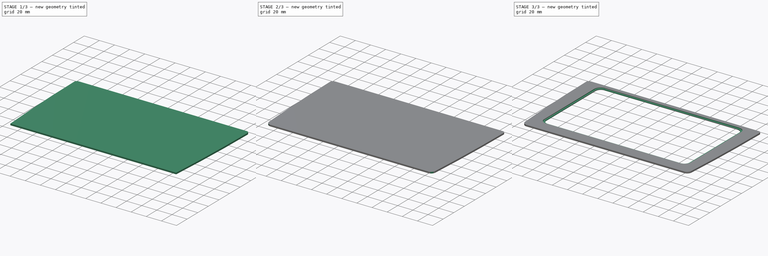
[diagram: build sequence overview — one tinted view per stage of 3, left to right]
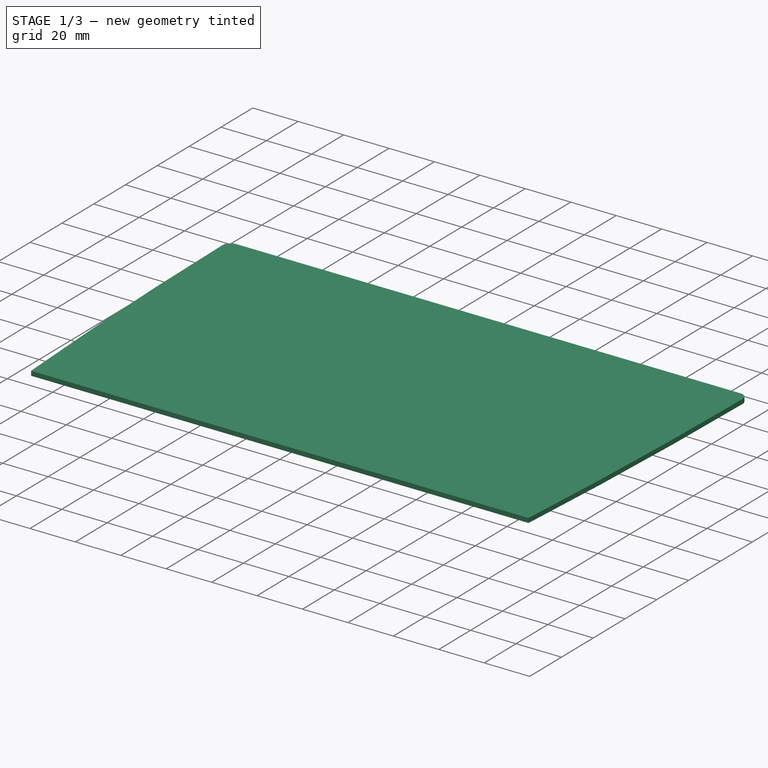
[diagram: stage 1 of 3 — iso view after this stage's code; geometry added in this stage tinted green]
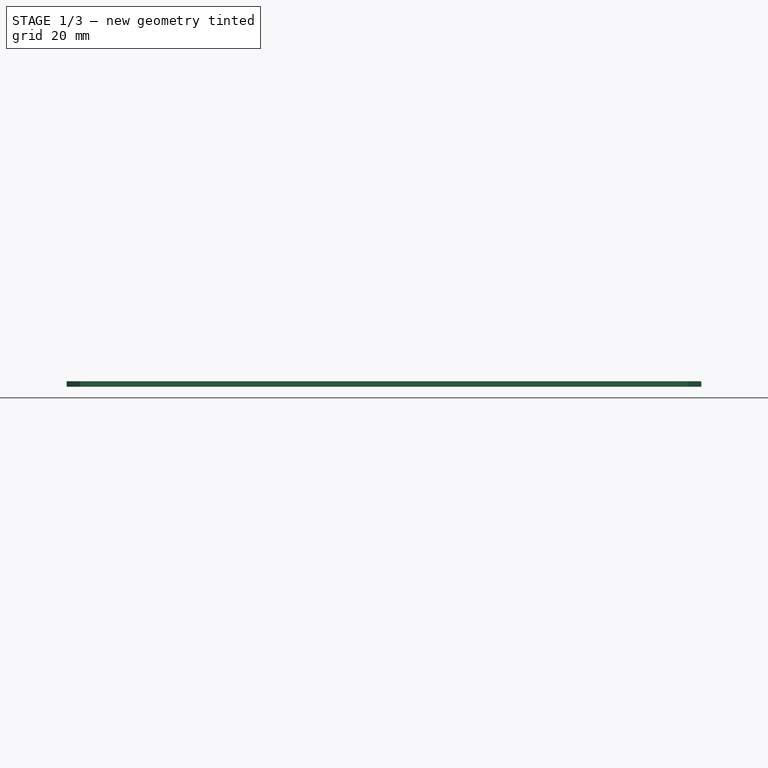
[diagram: stage 1 of 3 — front view after this stage's code; geometry added in this stage tinted green]
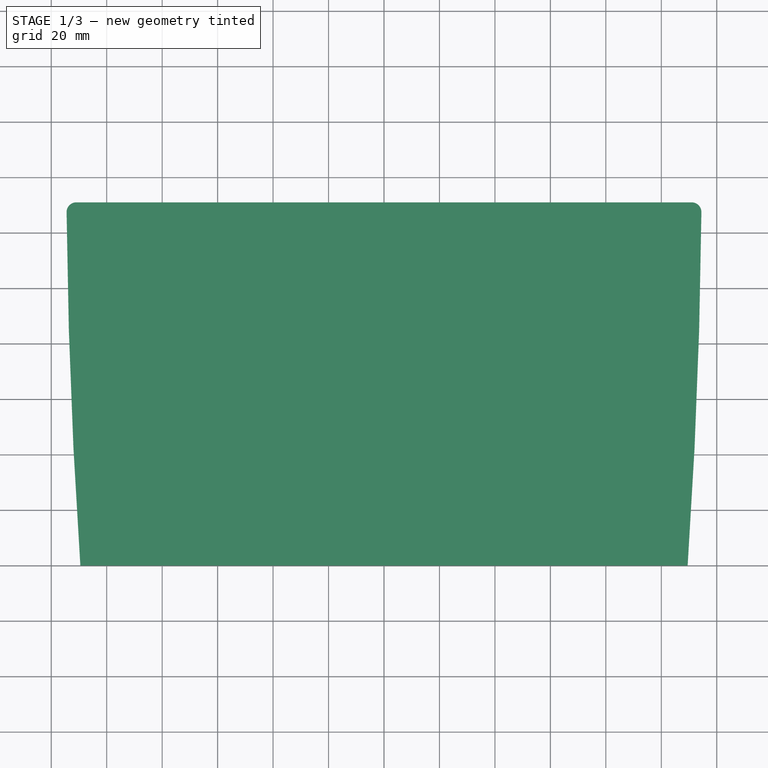
[diagram: stage 1 of 3 — top view after this stage's code; geometry added in this stage tinted green]
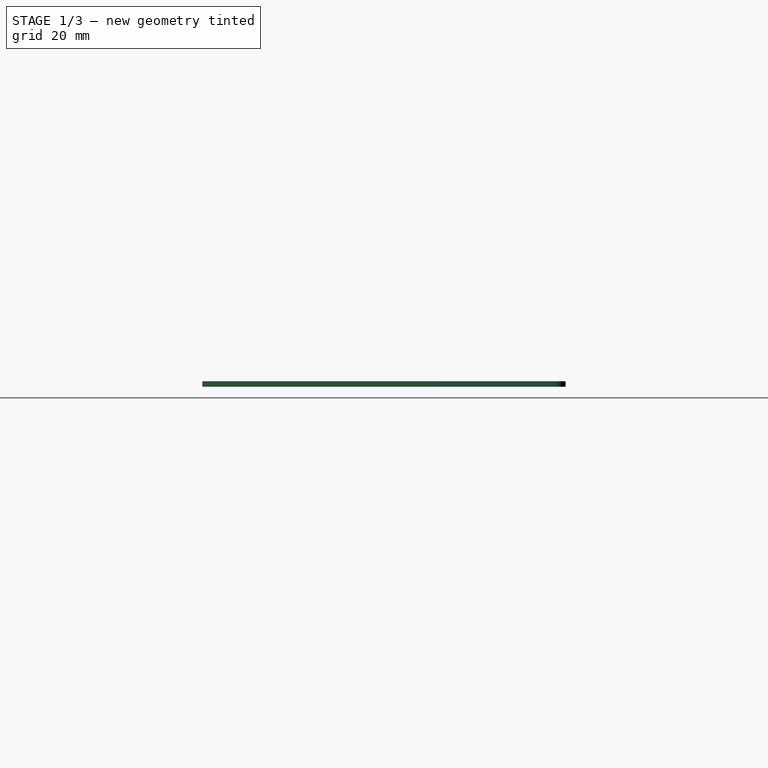
[diagram: stage 1 of 3 — right view after this stage's code; geometry added in this stage tinted green]
FCSTD DOCUMENT  (FreeCAD 0.19R24291 (Git))
Label: test-mount_v2
License: All rights reserved
LicenseURL: http://en.wikipedia.org/wiki/All_rights_reserved
objects: Sketcher::SketchObject×3, PartDesign::Fillet×2, PartDesign::Pocket×2, PartDesign::Pad×1, PartDesign::Body×1
note: 14 computed .brp shape members not serialized (recipe doc carries the construction recipe); baked Part::Feature solids carry a one-line shape summary decoded from their .brp

FEATURE [Sketcher::SketchObject] Sketch
  FullyConstrained = true
  MapMode = 5
  Support = -> [XY_Plane]
  sketch-geometry (9):
    g0: LineSegment StartX=-114.5 StartY=111 StartZ=0 EndX=114.5 EndY=111 EndZ=0
    g1: LineSegment StartX=109.5 StartY=-20 StartZ=0 EndX=-109.5 EndY=-20 EndZ=0
    g2: GeomPoint X=114.5 Y=111 Z=0
    g3: GeomPoint X=-112 Y=45.5 Z=0
    g4: GeomPoint X=112 Y=45.5 Z=0
    g5: GeomPoint X=113 Y=45.5 Z=0
    g6: GeomPoint X=-113 Y=45.5 Z=0
    g7: ArcOfCircle CenterX=2035.75 CenterY=127.475 CenterZ=0 NormalX=0 NormalY=0 NormalZ=1 AngleXU=0 Radius=2150.31 StartAngle=3.14925 EndAngle=3.21023
    g8: ArcOfCircle CenterX=-2035.75 CenterY=127.475 CenterZ=0 NormalX=0 NormalY=0 NormalZ=1 AngleXU=0 Radius=2150.31 StartAngle=6.21455 EndAngle=6.27552
  constraints (23):
    c: Horizontal(g0)
    c: Horizontal(g1)
    c: DistanceX(g0,g0) = 229
    c: DistanceX(g1,g1) = 219
    c: DistanceX(g1,g-1) = 109.5
    c: DistanceY(g1,g-1) = 20
    c: DistanceY(g1,g0) = 131
    c: Coincident(g2,g0)
    c: DistanceX(g-1,g0) = 114.5
    c: DistanceY(g4,g0) = 65.5
    c: DistanceY(g3,g0) = 65.5
    c: DistanceY(g5,g0) = 65.5
    c: DistanceY(g6,g0) = 65.5
    c: Coincident(g7,g0)
    c: Coincident(g7,g1)
    c: PointOnObject(g6,g7)
    c: Coincident(g8,g0)
    c: Coincident(g8,g1)
    c: PointOnObject(g5,g8)
    c: DistanceX(g6,g3) = 1
    c: DistanceX(g4,g5) = 1
    c: DistanceX(g4) = 112
    c: DistanceX(g3) = -112
FEATURE [PartDesign::Pad] Pad
  Direction = (1,1,1)
  Length = 2
  Length2 = 100
  Profile = -> Sketch
  Type = 0
FEATURE [PartDesign::Fillet] Fillet
  Base = -> Pad [Edge8,Edge5]
  BaseFeature = -> Pad
  Radius = 3.5
  SupportTransform = false
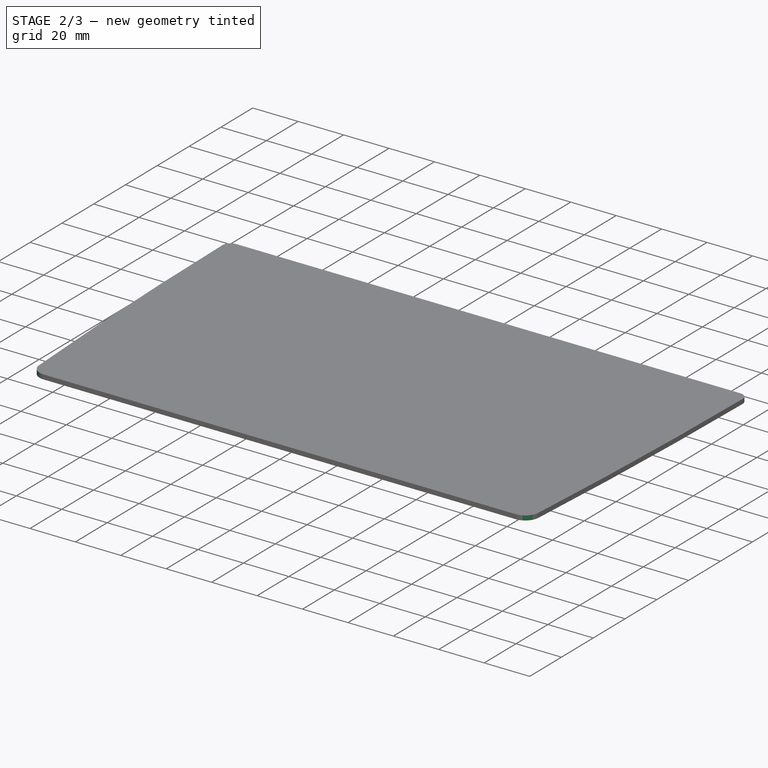
[diagram: stage 2 of 3 — iso view after this stage's code; geometry added in this stage tinted green]
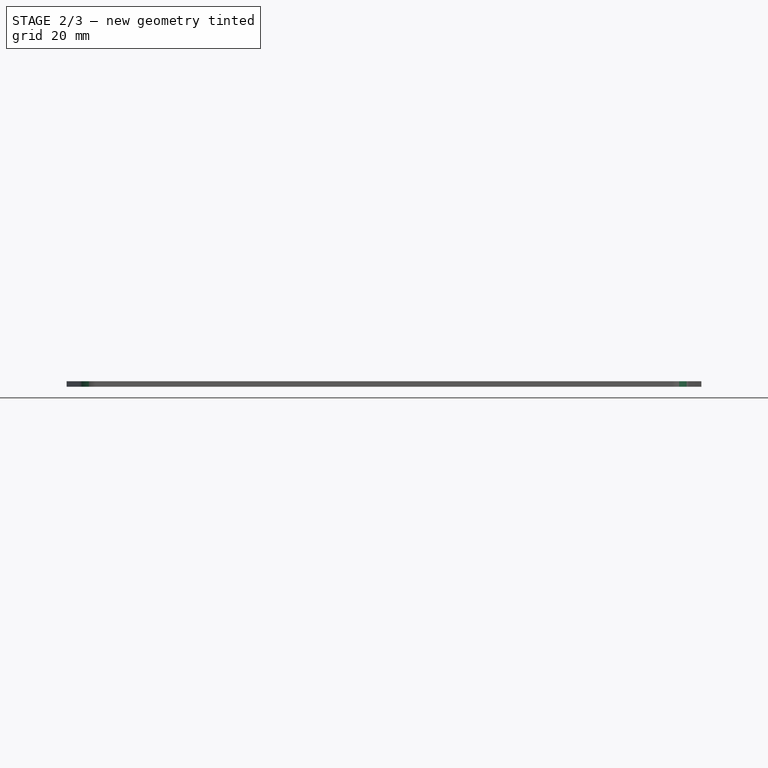
[diagram: stage 2 of 3 — front view after this stage's code; geometry added in this stage tinted green]
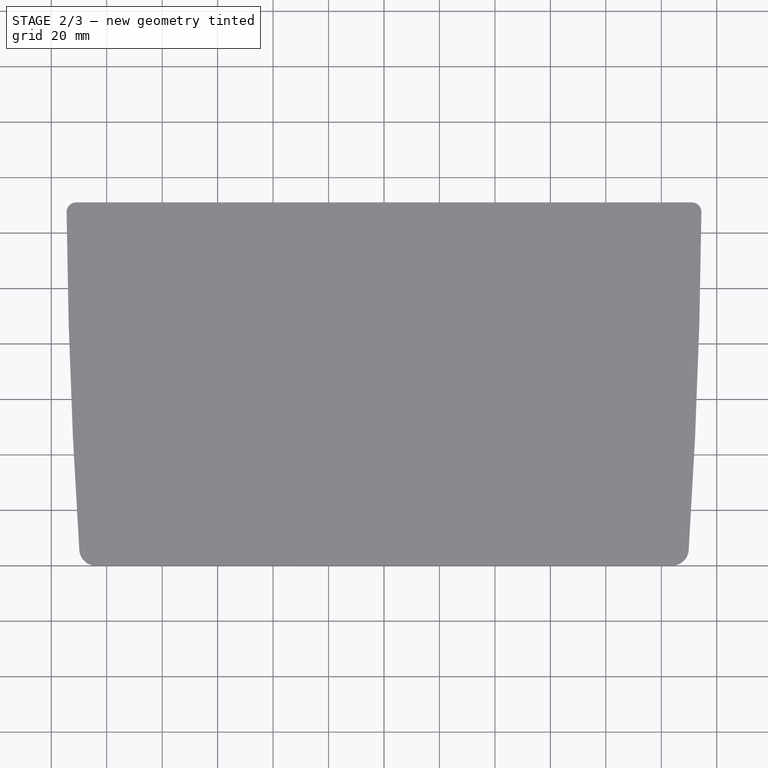
[diagram: stage 2 of 3 — top view after this stage's code; geometry added in this stage tinted green]
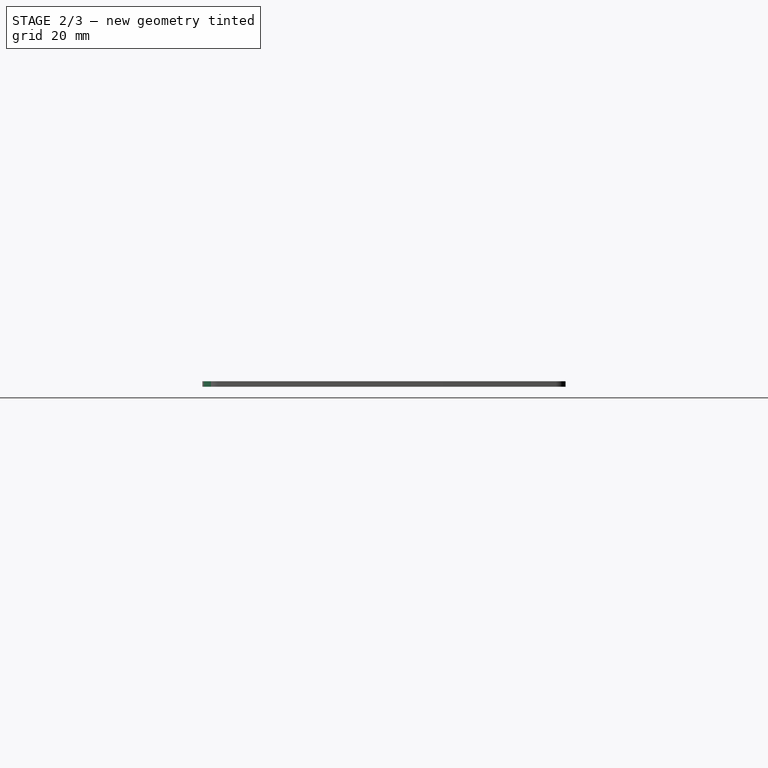
[diagram: stage 2 of 3 — right view after this stage's code; geometry added in this stage tinted green]
FEATURE [PartDesign::Fillet] Fillet001
  Base = -> Fillet [Edge12,Edge3]
  BaseFeature = -> Fillet
  Radius = 6
  SupportTransform = false
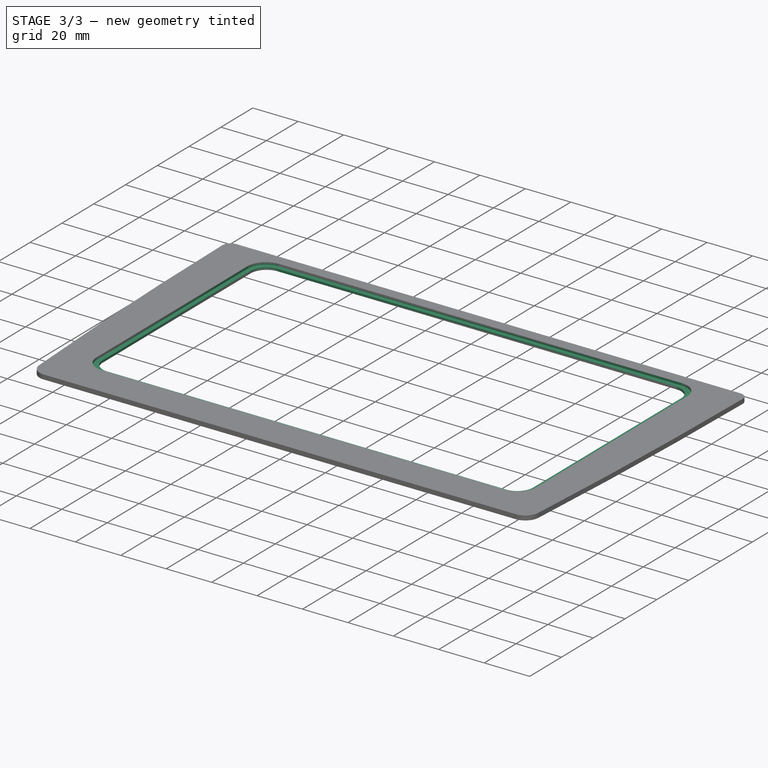
[diagram: stage 3 of 3 — iso view after this stage's code; geometry added in this stage tinted green]
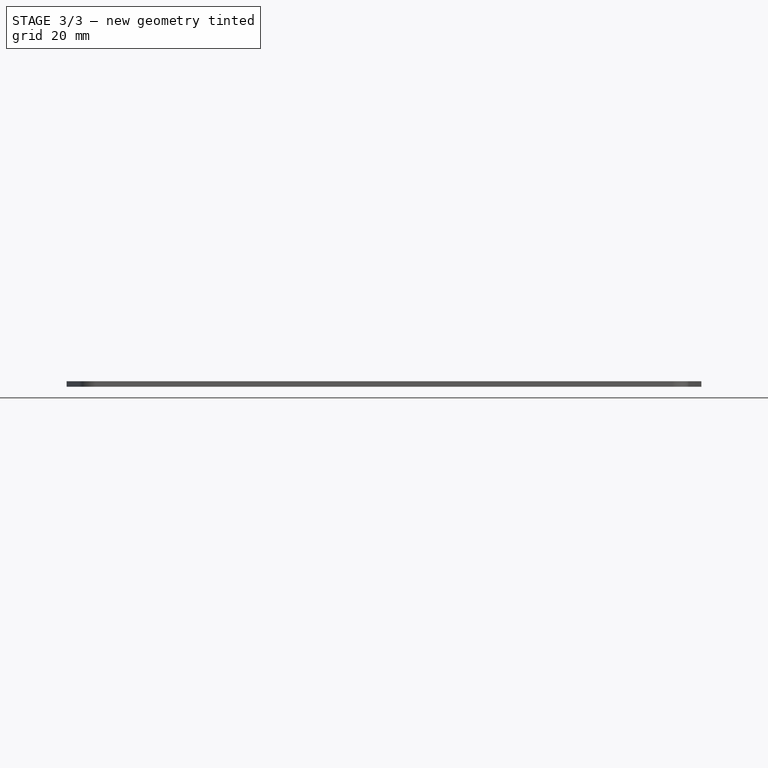
[diagram: stage 3 of 3 — front view after this stage's code; geometry added in this stage tinted green]
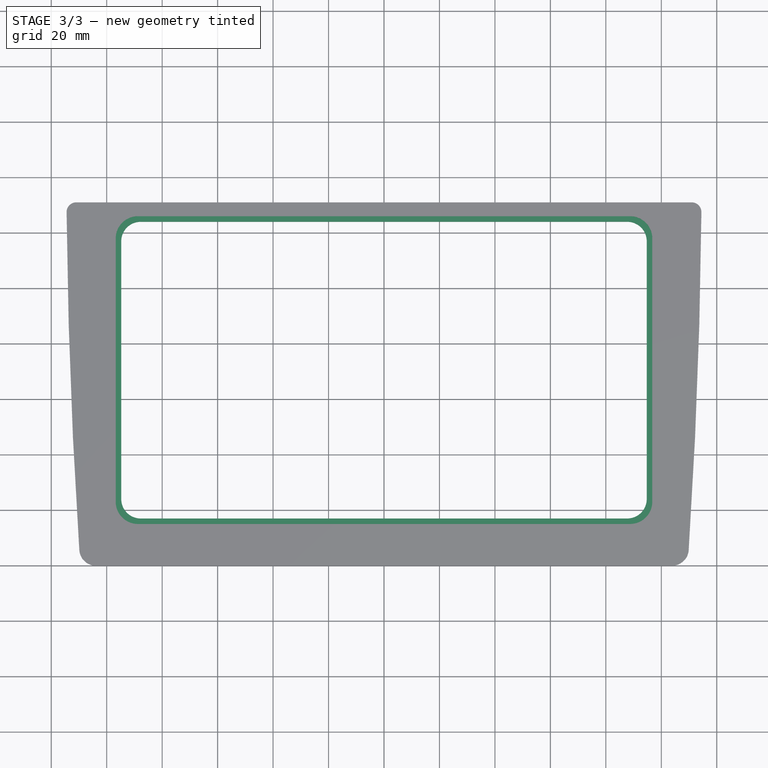
[diagram: stage 3 of 3 — top view after this stage's code; geometry added in this stage tinted green]
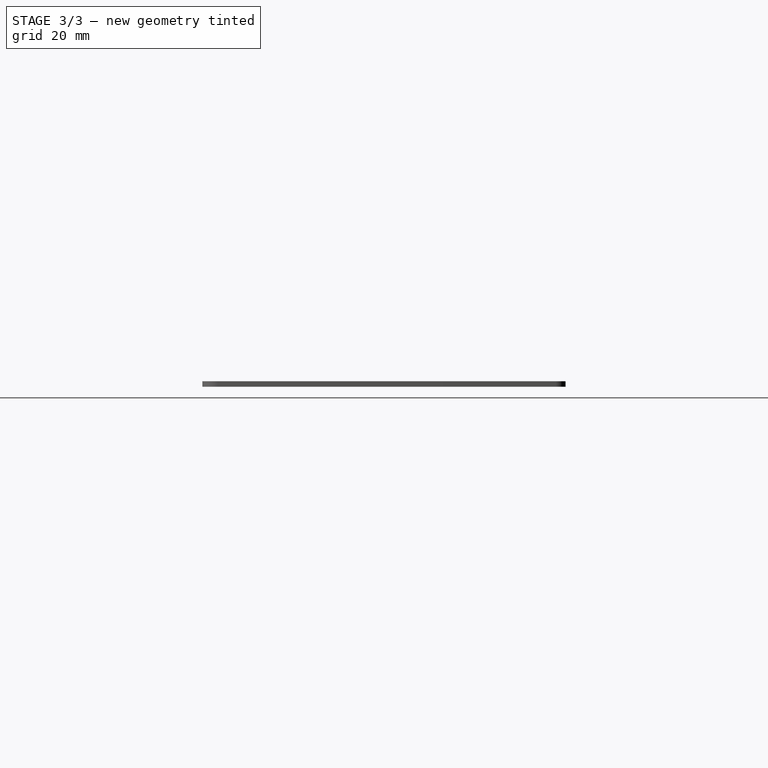
[diagram: stage 3 of 3 — right view after this stage's code; geometry added in this stage tinted green]
FEATURE [Sketcher::SketchObject] Sketch001
  ExternalGeometry = -> [Fillet001]
  FullyConstrained = true
  MapMode = 5
  Placement = pos=(0,0,2) rot=(0,0,1;0rad)
  Support = -> [Fillet001]
  sketch-geometry (8):
    g0: LineSegment StartX=-88.75 StartY=106 StartZ=0 EndX=88.75 EndY=106 EndZ=0
    g1: LineSegment StartX=96.75 StartY=98 StartZ=0 EndX=96.75 EndY=3 EndZ=0
    g2: LineSegment StartX=88.75 StartY=-5 StartZ=0 EndX=-88.75 EndY=-5 EndZ=0
    g3: LineSegment StartX=-96.75 StartY=3 StartZ=0 EndX=-96.75 EndY=98 EndZ=0
    g4: ArcOfCircle CenterX=-88.75 CenterY=98 CenterZ=0 NormalX=0 NormalY=0 NormalZ=1 AngleXU=0 Radius=8 StartAngle=1.5708 EndAngle=3.14159
    g5: ArcOfCircle CenterX=88.75 CenterY=98 CenterZ=0 NormalX=0 NormalY=0 NormalZ=1 AngleXU=0 Radius=8 StartAngle=-9e-16 EndAngle=1.5708
    g6: ArcOfCircle CenterX=-88.75 CenterY=3 CenterZ=0 NormalX=0 NormalY=0 NormalZ=1 AngleXU=0 Radius=8 StartAngle=3.14159 EndAngle=4.71239
    g7: ArcOfCircle CenterX=88.75 CenterY=3 CenterZ=0 NormalX=0 NormalY=0 NormalZ=1 AngleXU=0 Radius=8 StartAngle=4.71239 EndAngle=6.28319
  constraints (20):
    c: Horizontal(g0)
    c: Horizontal(g2)
    c: Vertical(g1)
    c: Vertical(g3)
    c: Tangent(g0,g4) = 1.5708
    c: Tangent(g3,g4) = 1.5708
    c: DistanceX(g3,g4) = 8
    c: Tangent(g0,g5) = 1.5708
    c: Tangent(g1,g5) = 1.5708
    c: DistanceX(g5,g1) = 8
    c: Tangent(g3,g6) = 1.5708
    c: Tangent(g2,g6) = 1.5708
    c: DistanceX(g3,g6) = 8
    c: Tangent(g1,g7) = 1.5708
    c: Tangent(g2,g7) = 1.5708
    c: DistanceX(g7,g1) = 8
    c: DistanceX(g3,g1) = 193.5
    c: DistanceY(g2,g0) = 111
    c: DistanceX(g3,g-1) = 96.75
    c: DistanceY(g0,g-4) = 5
FEATURE [PartDesign::Pocket] Pocket
  BaseFeature = -> Fillet001
  Length = 1
  Length2 = 100
  Profile = -> Sketch001
  Type = 0
FEATURE [Sketcher::SketchObject] Sketch002
  ExternalGeometry = -> [Pocket]
  FullyConstrained = false
  MapMode = 5
  Placement = pos=(0,0,1) rot=(0,0,1;0rad)
  Support = -> [Pocket]
  sketch-geometry (16):
    g0: LineSegment StartX=-87.75 StartY=104 StartZ=0 EndX=87.75 EndY=104 EndZ=0
    g1: LineSegment StartX=94.75 StartY=97 StartZ=0 EndX=94.75 EndY=4 EndZ=0
    g2: LineSegment StartX=87.75 StartY=-3 StartZ=0 EndX=-87.75 EndY=-3 EndZ=0
    g3: LineSegment StartX=-94.75 StartY=4 StartZ=0 EndX=-94.75 EndY=97 EndZ=0
    g4: GeomPoint X=36.7032 Y=-5 Z=0
    g5: GeomPoint X=96.75 Y=54.5311 Z=0
    g6: GeomPoint X=-96.75 Y=59.2469 Z=0
    g7: GeomPoint X=-45.739 Y=106 Z=0
    g8: ArcOfCircle CenterX=-87.75 CenterY=97 CenterZ=0 NormalX=0 NormalY=0 NormalZ=1 AngleXU=0 Radius=7 StartAngle=1.5708 EndAngle=3.14159
    g9: ArcOfCircle CenterX=87.75 CenterY=97 CenterZ=0 NormalX=0 NormalY=0 NormalZ=1 AngleXU=0 Radius=7 StartAngle=8e-16 EndAngle=1.5708
    g10: ArcOfCircle CenterX=-87.75 CenterY=4 CenterZ=0 NormalX=0 NormalY=0 NormalZ=1 AngleXU=0 Radius=7 StartAngle=3.14159 EndAngle=4.71239
    g11: ArcOfCircle CenterX=87.75 CenterY=4 CenterZ=0 NormalX=0 NormalY=0 NormalZ=1 AngleXU=0 Radius=7 StartAngle=4.71239 EndAngle=6.28319
    g12: GeomPoint X=-87.2478 Y=-5 Z=0
    g13: GeomPoint X=-96.75 Y=2.68437 Z=0
    g14: GeomPoint X=-75.8799 Y=106 Z=0
    g15: GeomPoint X=96.75 Y=95.1509 Z=0
  constraints (28):
    c: Horizontal(g0)
    c: Horizontal(g2)
    c: Vertical(g1)
    c: Vertical(g3)
    c: PointOnObject(g4,g-6)
    c: PointOnObject(g5,g-5)
    c: PointOnObject(g6,g-4)
    c: PointOnObject(g7,g-3)
    c: Tangent(g3,g8) = 1.5708
    c: Tangent(g0,g8) = 1.5708
    c: Tangent(g0,g9) = 1.5708
    c: Tangent(g1,g9) = 1.5708
    c: DistanceX(g9,g1) = 7
    c: DistanceX(g3,g8) = 7
    c: Tangent(g3,g10) = 1.5708
    c: Tangent(g2,g10) = 1.5708
    c: DistanceX(g3,g10) = 7
    c: Tangent(g1,g11) = 1.5708
    c: Tangent(g2,g11) = 1.5708
    c: DistanceX(g11,g1) = 7
    c: DistanceY(g12,g2) = 2
    c: PointOnObject(g12,g-6)
    c: DistanceX(g13,g3) = 2
    c: PointOnObject(g13,g-4)
    c: DistanceY(g0,g14) = 2
    c: PointOnObject(g14,g-3)
    c: DistanceX(g1,g15) = 2
    c: PointOnObject(g15,g-5)
FEATURE [PartDesign::Pocket] Pocket001
  BaseFeature = -> Pocket
  Length = 5
  Length2 = 100
  Profile = -> Sketch002
  Type = 0
FEATURE [PartDesign::Body] Body
  Group = -> [Sketch,Pad,Fillet,Fillet001,Sketch001,Pocket,Sketch002,Pocket001]
  Origin = -> Origin
  Tip = -> Pocket001
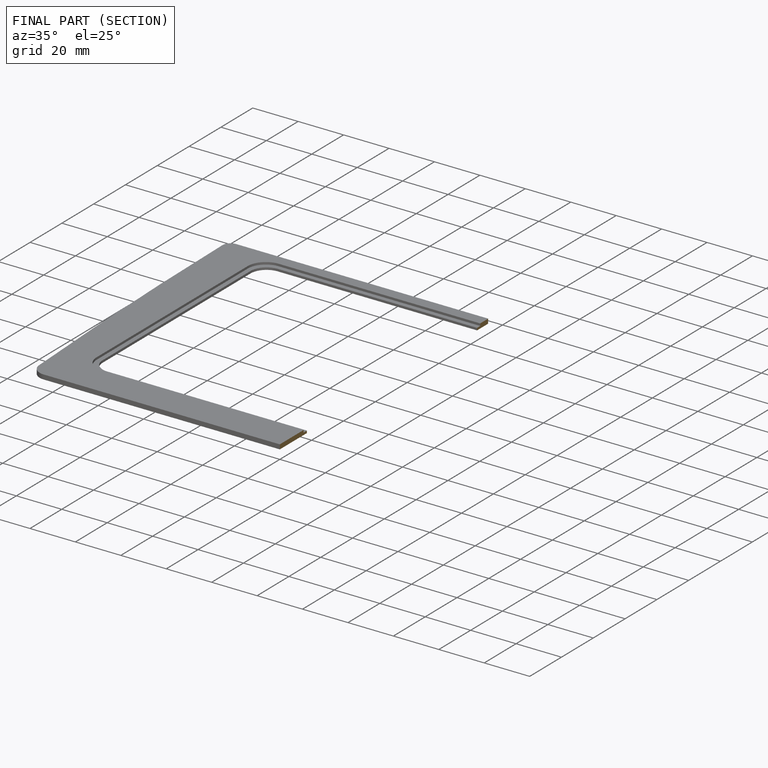
[diagram: finished part — half-section view (interior)]
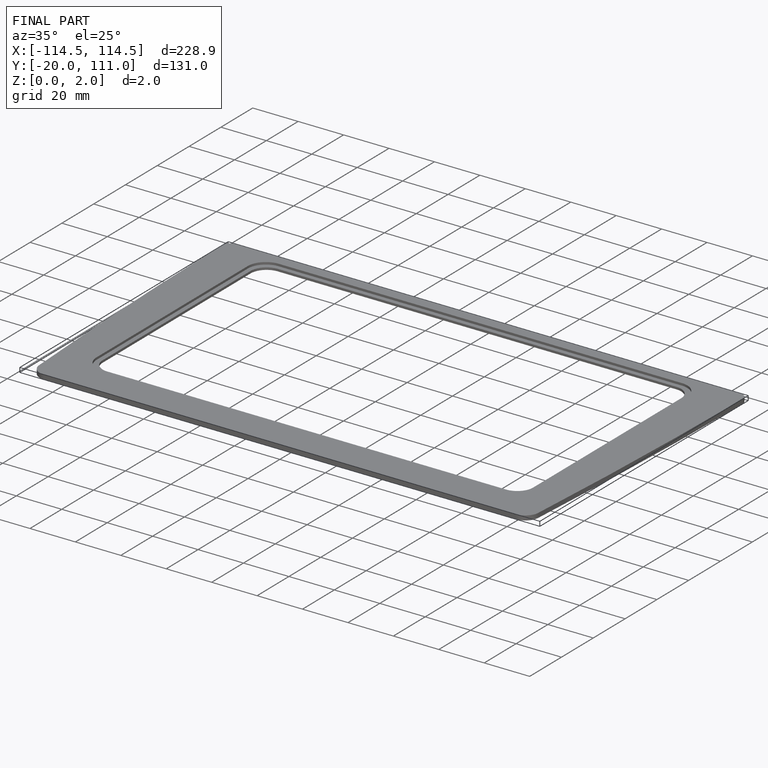
[diagram: finished part — iso view with bounding-box wireframe]
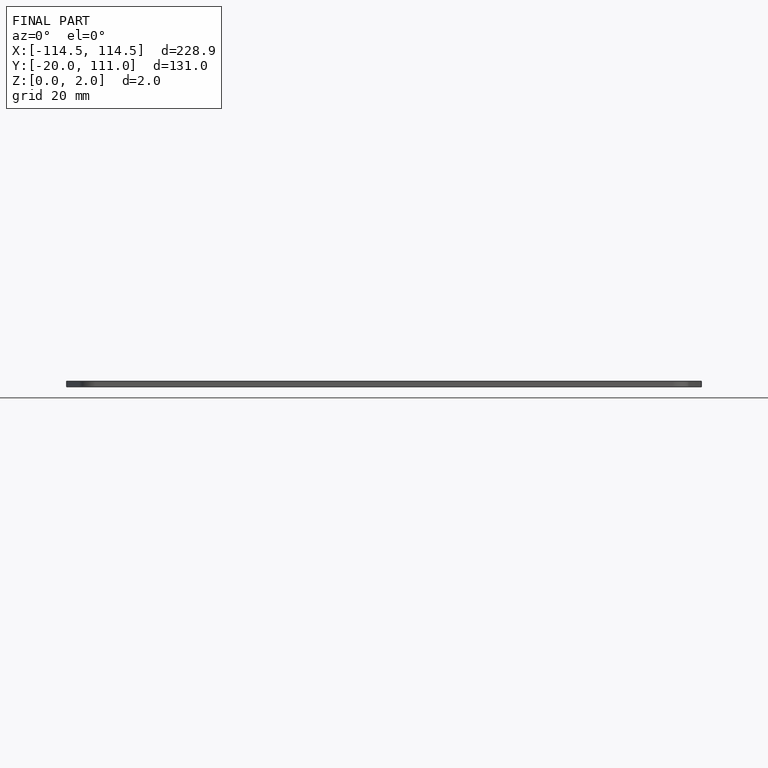
[diagram: finished part — front view with bounding-box wireframe]
